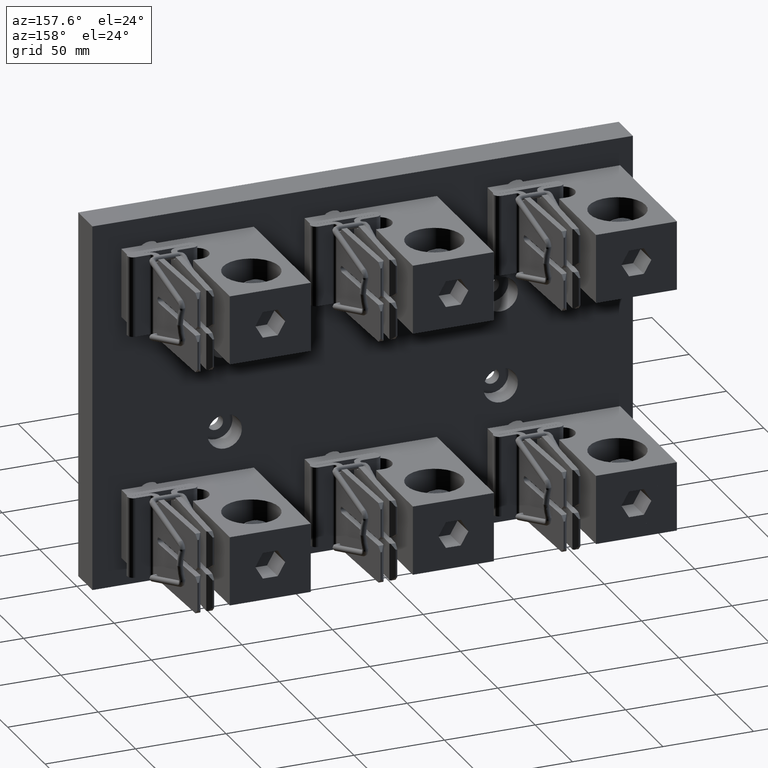
[diagram: clean part render]
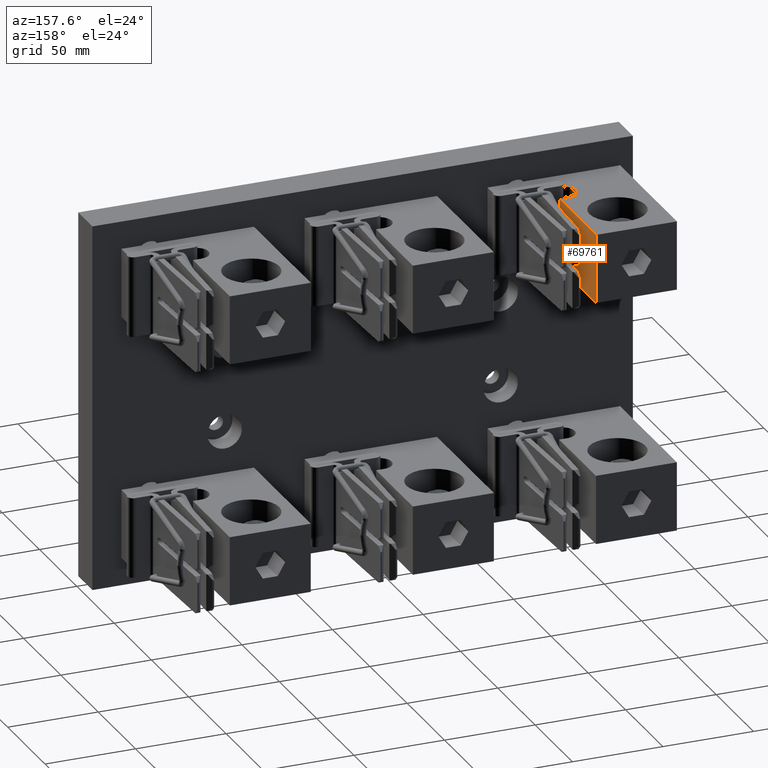
[diagram: same view with one face highlighted and labeled with its STEP entity id]
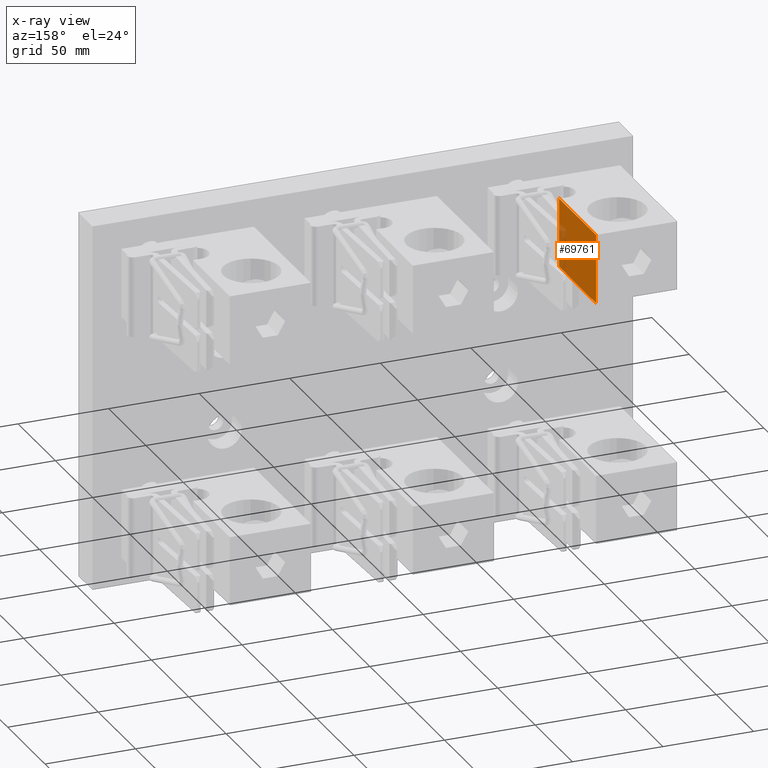
[diagram: x-ray of the same camera — body ghosted, the highlighted face saturated]
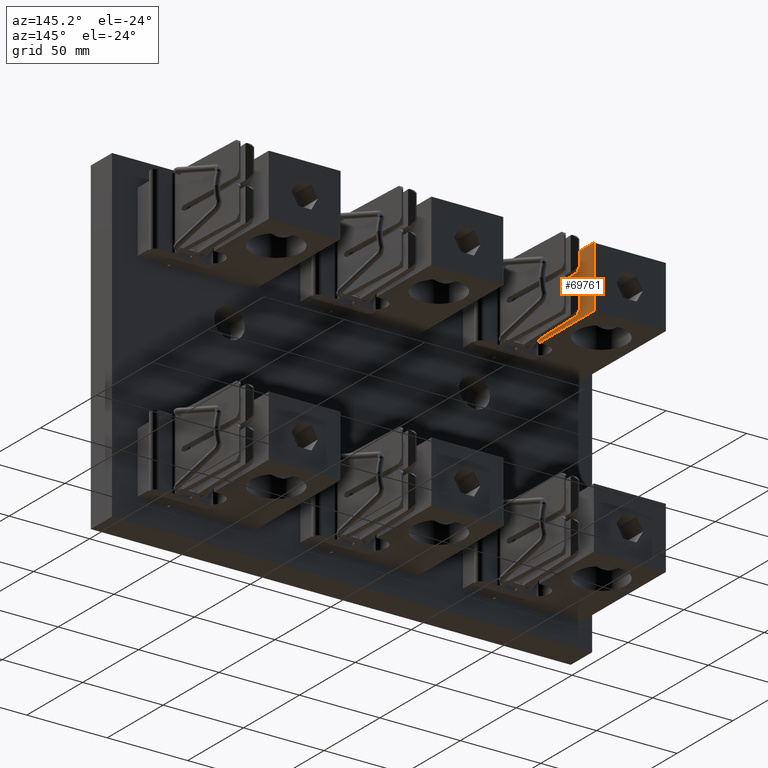
[diagram: same view with one face highlighted and labeled with its STEP entity id]
A machine part, auxiliary view. The second image highlights one B-rep face of the part: STEP entity #69761.
The next image is the same camera in x-ray: the body ghosted, the highlighted face saturated — about 12% of this face is hidden behind the body in this view.
A second angle (auxiliary view) of the same face is appended — the face is thin or edge-on in the first view.
In plain terms, the highlighted planar face has unit normal (-1, 0, -0).
Its self-contained STEP definition (entity closure, byte-faithful):
#5005 = ORIENTED_EDGE ( 'NONE', *, *, #36749, .T. ) ;
#5662 = CARTESIAN_POINT ( 'NONE',  ( -3.835000000000000000, 3.750000000000001300, 1.899999999999999700 ) ) ;
#5848 = VERTEX_POINT ( 'NONE', #50913 ) ;
#6090 = VECTOR ( 'NONE', #43856, 39.37007874015748100 ) ;
#7370 = VECTOR ( 'NONE', #76491, 39.37007874015748100 ) ;
#9634 = LINE ( 'NONE', #29134, #16693 ) ;
#16693 = VECTOR ( 'NONE', #22751, 39.37007874015748100 ) ;
#18855 = CARTESIAN_POINT ( 'NONE',  ( -3.835000000000000900, 3.750000000000001300, 3.399999999999999900 ) ) ;
#19736 = ORIENTED_EDGE ( 'NONE', *, *, #23385, .F. ) ;
#22751 = DIRECTION ( 'NONE',  ( 0.0000000000000000000, 1.000000000000000000, 0.0000000000000000000 ) ) ;
#23385 = EDGE_CURVE ( 'NONE', #24498, #67283, #9634, .T. ) ;
#24011 = FACE_OUTER_BOUND ( 'NONE', #44292, .T. ) ;
#24498 = VERTEX_POINT ( 'NONE', #52102 ) ;
#25383 = CARTESIAN_POINT ( 'NONE',  ( -3.835000000000000000, 1.810000000000000100, 1.899999999999999700 ) ) ;
#26286 = CARTESIAN_POINT ( 'NONE',  ( -3.835000000000000900, 3.750000000000001300, 3.399999999999999900 ) ) ;
#26935 = CARTESIAN_POINT ( 'NONE',  ( -3.835000000000000900, 1.810000000000000100, 3.399999999999999900 ) ) ;
#29134 = CARTESIAN_POINT ( 'NONE',  ( -3.835000000000000900, 1.810000000000000100, 3.399999999999999900 ) ) ;
#30390 = EDGE_CURVE ( 'NONE', #24498, #5848, #79543, .T. ) ;
#30510 = VECTOR ( 'NONE', #72121, 39.37007874015748100 ) ;
#33391 = DIRECTION ( 'NONE',  ( -3.196228004487266600E-016, 0.0000000000000000000, 1.000000000000000000 ) ) ;
#36740 = VERTEX_POINT ( 'NONE', #5662 ) ;
#36749 = EDGE_CURVE ( 'NONE', #5848, #36740, #74292, .T. ) ;
#39541 = PLANE ( 'NONE',  #76081 ) ;
#41551 = LINE ( 'NONE', #18855, #7370 ) ;
#43856 = DIRECTION ( 'NONE',  ( 0.0000000000000000000, 1.000000000000000000, 0.0000000000000000000 ) ) ;
#44292 = EDGE_LOOP ( 'NONE', ( #5005, #58185, #19736, #51002 ) ) ;
#50913 = CARTESIAN_POINT ( 'NONE',  ( -3.835000000000000000, 1.810000000000000100, 1.899999999999999700 ) ) ;
#51002 = ORIENTED_EDGE ( 'NONE', *, *, #30390, .T. ) ;
#52102 = CARTESIAN_POINT ( 'NONE',  ( -3.835000000000000900, 1.810000000000000100, 3.399999999999999900 ) ) ;
#58185 = ORIENTED_EDGE ( 'NONE', *, *, #81040, .F. ) ;
#67283 = VERTEX_POINT ( 'NONE', #26286 ) ;
#69761 = ADVANCED_FACE ( 'NONE', ( #24011 ), #39541, .F. ) ;
#71645 = DIRECTION ( 'NONE',  ( -1.000000000000000000, 0.0000000000000000000, -3.196228004487266600E-016 ) ) ;
#72121 = DIRECTION ( 'NONE',  ( 3.196228004487266600E-016, -0.0000000000000000000, -1.000000000000000000 ) ) ;
#72403 = CARTESIAN_POINT ( 'NONE',  ( -3.835000000000000900, 1.810000000000000100, 3.399999999999999900 ) ) ;
#74292 = LINE ( 'NONE', #25383, #6090 ) ;
#76081 = AXIS2_PLACEMENT_3D ( 'NONE', #26935, #71645, #33391 ) ;
#76491 = DIRECTION ( 'NONE',  ( 3.196228004487266600E-016, -0.0000000000000000000, -1.000000000000000000 ) ) ;
#79543 = LINE ( 'NONE', #72403, #30510 ) ;
#81040 = EDGE_CURVE ( 'NONE', #67283, #36740, #41551, .T. ) ;